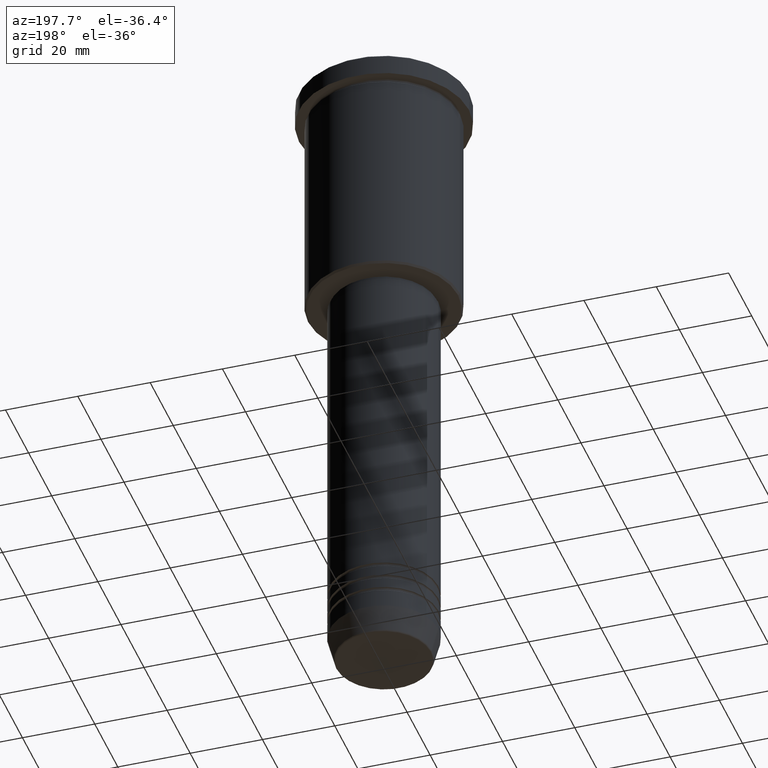
[diagram: clean part render]
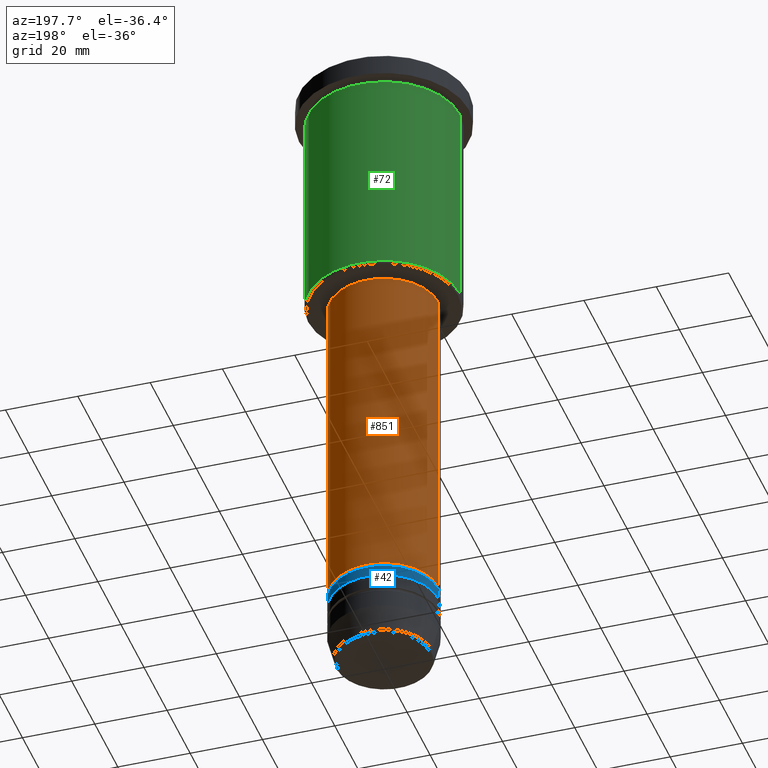
[diagram: same view with three faces highlighted in distinct colors, each labeled with its STEP entity id]
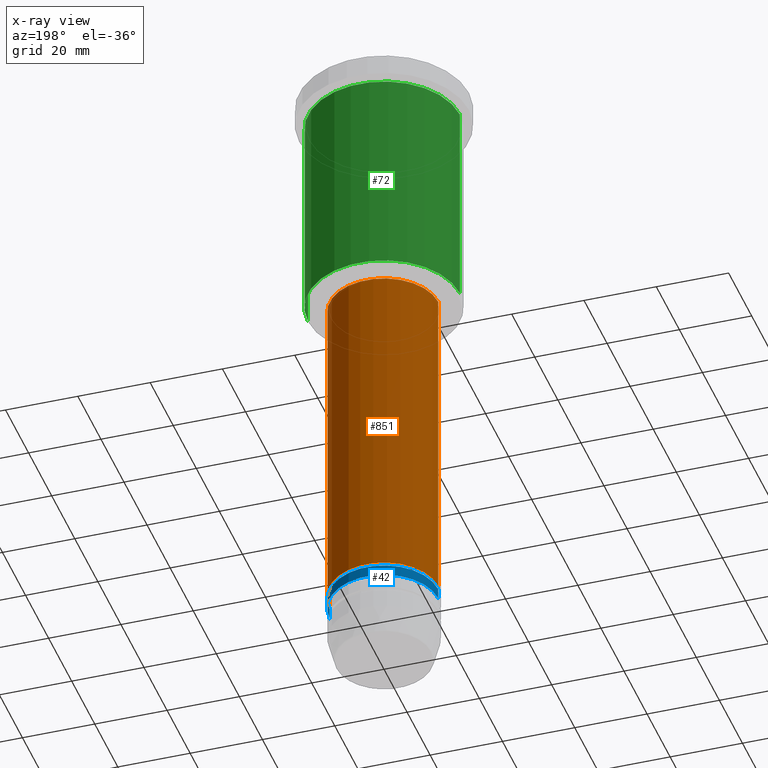
[diagram: x-ray of the same camera — body ghosted, the three highlighted faces saturated]
A machine part, auxiliary view with three faces highlighted in distinct colors.
The next image is the same camera in x-ray (body ghosted, the three faces saturated) — at least one of them is partly hidden behind the body in this view.
Their STEP definitions:

[orange] entity #851 — the highlighted cylindrical surface (partial cylindrical patch) has radius 15 mm, axis along (-0, -0, 1).
#5 = DIRECTION ( 'NONE',  ( -0.000000000000000000, -0.000000000000000000, 1.000000000000000000 ) ) ;
#20 = CARTESIAN_POINT ( 'NONE',  ( -15.00000000000000000, 1.836970198721029589E-15, 0.000000000000000000 ) ) ;
#35 = EDGE_CURVE ( 'NONE', #350, #435, #1007, .T. ) ;
#56 = EDGE_CURVE ( 'NONE', #875, #435, #372, .T. ) ;
#96 = CARTESIAN_POINT ( 'NONE',  ( 0.000000000000000000, 0.000000000000000000, -66.99999999999997158 ) ) ;
#110 = DIRECTION ( 'NONE',  ( -0.000000000000000000, -0.000000000000000000, 1.000000000000000000 ) ) ;
#136 = DIRECTION ( 'NONE',  ( 1.000000000000000000, 0.000000000000000000, 0.000000000000000000 ) ) ;
#229 = FACE_OUTER_BOUND ( 'NONE', #1009, .T. ) ;
#249 = LINE ( 'NONE', #1161, #478 ) ;
#280 = DIRECTION ( 'NONE',  ( -0.000000000000000000, -0.000000000000000000, 1.000000000000000000 ) ) ;
#350 = VERTEX_POINT ( 'NONE', #1075 ) ;
#372 = LINE ( 'NONE', #20, #779 ) ;
#387 = DIRECTION ( 'NONE',  ( 1.000000000000000000, 0.000000000000000000, 0.000000000000000000 ) ) ;
#394 = CARTESIAN_POINT ( 'NONE',  ( 0.000000000000000000, 0.000000000000000000, -159.9999999999998579 ) ) ;
#435 = VERTEX_POINT ( 'NONE', #451 ) ;
#451 = CARTESIAN_POINT ( 'NONE',  ( -15.00000000000000000, 1.836970198721029589E-15, -66.99999999999997158 ) ) ;
#471 = EDGE_CURVE ( 'NONE', #995, #875, #1096, .T. ) ;
#478 = VECTOR ( 'NONE', #618, 1000.000000000000000 ) ;
#500 = CYLINDRICAL_SURFACE ( 'NONE', #614, 15.00000000000000000 ) ;
#614 = AXIS2_PLACEMENT_3D ( 'NONE', #1070, #810, #136 ) ;
#618 = DIRECTION ( 'NONE',  ( -0.000000000000000000, -0.000000000000000000, 1.000000000000000000 ) ) ;
#638 = ORIENTED_EDGE ( 'NONE', *, *, #965, .F. ) ;
#735 = ORIENTED_EDGE ( 'NONE', *, *, #471, .T. ) ;
#761 = ORIENTED_EDGE ( 'NONE', *, *, #35, .F. ) ;
#776 = CARTESIAN_POINT ( 'NONE',  ( 15.00000000000000000, 0.000000000000000000, -159.9999999999998579 ) ) ;
#779 = VECTOR ( 'NONE', #280, 1000.000000000000000 ) ;
#794 = AXIS2_PLACEMENT_3D ( 'NONE', #96, #5, #387 ) ;
#810 = DIRECTION ( 'NONE',  ( -0.000000000000000000, -0.000000000000000000, 1.000000000000000000 ) ) ;
#851 = ADVANCED_FACE ( 'NONE', ( #229 ), #500, .T. ) ;
#875 = VERTEX_POINT ( 'NONE', #900 ) ;
#900 = CARTESIAN_POINT ( 'NONE',  ( -15.00000000000000000, 1.836970198721029589E-15, -159.9999999999998579 ) ) ;
#923 = DIRECTION ( 'NONE',  ( 1.000000000000000000, 0.000000000000000000, 0.000000000000000000 ) ) ;
#957 = ORIENTED_EDGE ( 'NONE', *, *, #56, .T. ) ;
#965 = EDGE_CURVE ( 'NONE', #995, #350, #249, .T. ) ;
#995 = VERTEX_POINT ( 'NONE', #776 ) ;
#1007 = CIRCLE ( 'NONE', #794, 15.00000000000000000 ) ;
#1009 = EDGE_LOOP ( 'NONE', ( #735, #957, #761, #638 ) ) ;
#1070 = CARTESIAN_POINT ( 'NONE',  ( 0.000000000000000000, 0.000000000000000000, 0.000000000000000000 ) ) ;
#1075 = CARTESIAN_POINT ( 'NONE',  ( 15.00000000000000000, 0.000000000000000000, -66.99999999999997158 ) ) ;
#1096 = CIRCLE ( 'NONE', #1171, 15.00000000000000000 ) ;
#1161 = CARTESIAN_POINT ( 'NONE',  ( 15.00000000000000000, 0.000000000000000000, 0.000000000000000000 ) ) ;
#1171 = AXIS2_PLACEMENT_3D ( 'NONE', #394, #110, #923 ) ;

[blue] entity #42 — the highlighted cylindrical surface (partial cylindrical patch) has radius 15 mm, axis along (-0, -0, 1).
#13 = DIRECTION ( 'NONE',  ( 1.000000000000000000, 0.000000000000000000, 0.000000000000000000 ) ) ;
#17 = VERTEX_POINT ( 'NONE', #721 ) ;
#29 = VERTEX_POINT ( 'NONE', #1004 ) ;
#42 = ADVANCED_FACE ( 'NONE', ( #959 ), #1050, .T. ) ;
#58 = DIRECTION ( 'NONE',  ( 1.000000000000000000, 0.000000000000000000, 0.000000000000000000 ) ) ;
#59 = CARTESIAN_POINT ( 'NONE',  ( 0.000000000000000000, 0.000000000000000000, -163.9999999999998863 ) ) ;
#162 = LINE ( 'NONE', #336, #192 ) ;
#192 = VECTOR ( 'NONE', #711, 1000.000000000000000 ) ;
#219 = EDGE_LOOP ( 'NONE', ( #1180, #1072, #670, #858 ) ) ;
#251 = LINE ( 'NONE', #526, #1172 ) ;
#299 = AXIS2_PLACEMENT_3D ( 'NONE', #685, #847, #13 ) ;
#306 = EDGE_CURVE ( 'NONE', #29, #17, #737, .T. ) ;
#307 = CARTESIAN_POINT ( 'NONE',  ( -15.00000000000000533, 1.836970198721030378E-15, -163.9999999999998863 ) ) ;
#336 = CARTESIAN_POINT ( 'NONE',  ( 15.00000000000000178, 0.000000000000000000, 0.000000000000000000 ) ) ;
#417 = DIRECTION ( 'NONE',  ( 1.000000000000000000, 0.000000000000000000, 0.000000000000000000 ) ) ;
#420 = AXIS2_PLACEMENT_3D ( 'NONE', #1042, #509, #58 ) ;
#425 = DIRECTION ( 'NONE',  ( -0.000000000000000000, -0.000000000000000000, 1.000000000000000000 ) ) ;
#509 = DIRECTION ( 'NONE',  ( -0.000000000000000000, -0.000000000000000000, 1.000000000000000000 ) ) ;
#511 = EDGE_CURVE ( 'NONE', #1091, #941, #634, .T. ) ;
#526 = CARTESIAN_POINT ( 'NONE',  ( -15.00000000000000178, 1.836970198721029983E-15, 0.000000000000000000 ) ) ;
#634 = CIRCLE ( 'NONE', #1117, 15.00000000000000355 ) ;
#670 = ORIENTED_EDGE ( 'NONE', *, *, #306, .F. ) ;
#674 = EDGE_CURVE ( 'NONE', #941, #17, #251, .T. ) ;
#685 = CARTESIAN_POINT ( 'NONE',  ( 0.000000000000000000, 0.000000000000000000, 0.000000000000000000 ) ) ;
#711 = DIRECTION ( 'NONE',  ( -0.000000000000000000, -0.000000000000000000, 1.000000000000000000 ) ) ;
#713 = EDGE_CURVE ( 'NONE', #1091, #29, #162, .T. ) ;
#721 = CARTESIAN_POINT ( 'NONE',  ( -15.00000000000000000, 1.836970198721029983E-15, -160.9999999999998579 ) ) ;
#737 = CIRCLE ( 'NONE', #420, 15.00000000000000000 ) ;
#799 = DIRECTION ( 'NONE',  ( -0.000000000000000000, -0.000000000000000000, 1.000000000000000000 ) ) ;
#833 = CARTESIAN_POINT ( 'NONE',  ( 15.00000000000000355, 0.000000000000000000, -163.9999999999998863 ) ) ;
#847 = DIRECTION ( 'NONE',  ( -0.000000000000000000, -0.000000000000000000, 1.000000000000000000 ) ) ;
#858 = ORIENTED_EDGE ( 'NONE', *, *, #713, .F. ) ;
#941 = VERTEX_POINT ( 'NONE', #307 ) ;
#959 = FACE_OUTER_BOUND ( 'NONE', #219, .T. ) ;
#1004 = CARTESIAN_POINT ( 'NONE',  ( 15.00000000000000000, 0.000000000000000000, -160.9999999999998579 ) ) ;
#1042 = CARTESIAN_POINT ( 'NONE',  ( 0.000000000000000000, 0.000000000000000000, -160.9999999999998579 ) ) ;
#1050 = CYLINDRICAL_SURFACE ( 'NONE', #299, 15.00000000000000178 ) ;
#1072 = ORIENTED_EDGE ( 'NONE', *, *, #674, .T. ) ;
#1091 = VERTEX_POINT ( 'NONE', #833 ) ;
#1117 = AXIS2_PLACEMENT_3D ( 'NONE', #59, #799, #417 ) ;
#1172 = VECTOR ( 'NONE', #425, 1000.000000000000000 ) ;
#1180 = ORIENTED_EDGE ( 'NONE', *, *, #511, .T. ) ;

[green] entity #72 — the highlighted cylindrical surface (partial cylindrical patch) has radius 21 mm, axis along (-0, -0, 1).
#21 = EDGE_LOOP ( 'NONE', ( #381, #75, #544, #448 ) ) ;
#46 = CIRCLE ( 'NONE', #345, 21.00000000000000000 ) ;
#70 = AXIS2_PLACEMENT_3D ( 'NONE', #843, #948, #378 ) ;
#72 = ADVANCED_FACE ( 'NONE', ( #1018 ), #759, .T. ) ;
#75 = ORIENTED_EDGE ( 'NONE', *, *, #145, .T. ) ;
#111 = EDGE_CURVE ( 'NONE', #605, #115, #522, .T. ) ;
#115 = VERTEX_POINT ( 'NONE', #1132 ) ;
#145 = EDGE_CURVE ( 'NONE', #115, #447, #575, .T. ) ;
#277 = CARTESIAN_POINT ( 'NONE',  ( -21.00000000000000000, 2.571758278209441661E-15, 0.000000000000000000 ) ) ;
#289 = DIRECTION ( 'NONE',  ( 1.000000000000000000, 0.000000000000000000, 0.000000000000000000 ) ) ;
#290 = CARTESIAN_POINT ( 'NONE',  ( 0.000000000000000000, 0.000000000000000000, 0.000000000000000000 ) ) ;
#327 = CARTESIAN_POINT ( 'NONE',  ( 21.00000000000000000, 0.000000000000000000, 0.000000000000000000 ) ) ;
#345 = AXIS2_PLACEMENT_3D ( 'NONE', #1136, #666, #289 ) ;
#378 = DIRECTION ( 'NONE',  ( -1.000000000000000000, 0.000000000000000000, 0.000000000000000000 ) ) ;
#381 = ORIENTED_EDGE ( 'NONE', *, *, #111, .T. ) ;
#414 = EDGE_CURVE ( 'NONE', #1046, #447, #46, .T. ) ;
#419 = LINE ( 'NONE', #327, #455 ) ;
#447 = VERTEX_POINT ( 'NONE', #503 ) ;
#448 = ORIENTED_EDGE ( 'NONE', *, *, #450, .F. ) ;
#450 = EDGE_CURVE ( 'NONE', #605, #1046, #419, .T. ) ;
#455 = VECTOR ( 'NONE', #802, 1000.000000000000000 ) ;
#503 = CARTESIAN_POINT ( 'NONE',  ( -21.00000000000000000, 2.571758278209441661E-15, -6.999999999999993783 ) ) ;
#522 = CIRCLE ( 'NONE', #70, 21.00000000000000000 ) ;
#541 = AXIS2_PLACEMENT_3D ( 'NONE', #290, #1029, #565 ) ;
#544 = ORIENTED_EDGE ( 'NONE', *, *, #414, .F. ) ;
#565 = DIRECTION ( 'NONE',  ( 1.000000000000000000, 0.000000000000000000, 0.000000000000000000 ) ) ;
#575 = LINE ( 'NONE', #277, #869 ) ;
#605 = VERTEX_POINT ( 'NONE', #980 ) ;
#652 = DIRECTION ( 'NONE',  ( -0.000000000000000000, -0.000000000000000000, 1.000000000000000000 ) ) ;
#666 = DIRECTION ( 'NONE',  ( -0.000000000000000000, -0.000000000000000000, 1.000000000000000000 ) ) ;
#759 = CYLINDRICAL_SURFACE ( 'NONE', #541, 21.00000000000000000 ) ;
#802 = DIRECTION ( 'NONE',  ( -0.000000000000000000, -0.000000000000000000, 1.000000000000000000 ) ) ;
#843 = CARTESIAN_POINT ( 'NONE',  ( 0.000000000000000000, 0.000000000000000000, -65.49999999999997158 ) ) ;
#869 = VECTOR ( 'NONE', #652, 1000.000000000000000 ) ;
#876 = CARTESIAN_POINT ( 'NONE',  ( 21.00000000000000000, 0.000000000000000000, -6.999999999999993783 ) ) ;
#948 = DIRECTION ( 'NONE',  ( -0.000000000000000000, -0.000000000000000000, 1.000000000000000000 ) ) ;
#980 = CARTESIAN_POINT ( 'NONE',  ( 21.00000000000000000, 0.000000000000000000, -65.49999999999997158 ) ) ;
#1018 = FACE_OUTER_BOUND ( 'NONE', #21, .T. ) ;
#1029 = DIRECTION ( 'NONE',  ( -0.000000000000000000, -0.000000000000000000, 1.000000000000000000 ) ) ;
#1046 = VERTEX_POINT ( 'NONE', #876 ) ;
#1132 = CARTESIAN_POINT ( 'NONE',  ( -21.00000000000000000, 2.571758278209441661E-15, -65.49999999999997158 ) ) ;
#1136 = CARTESIAN_POINT ( 'NONE',  ( 0.000000000000000000, 0.000000000000000000, -6.999999999999993783 ) ) ;